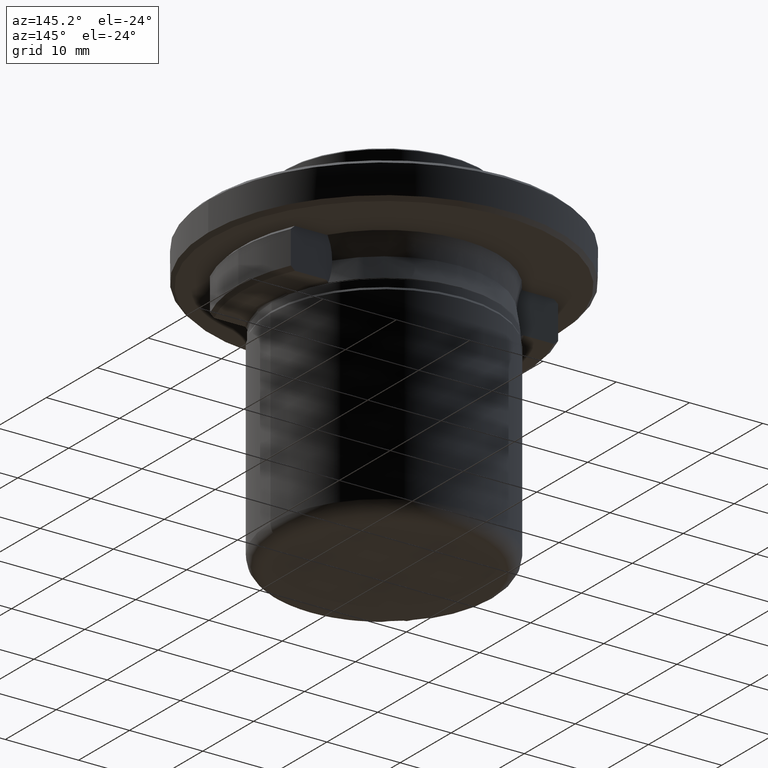
[diagram: clean part render]
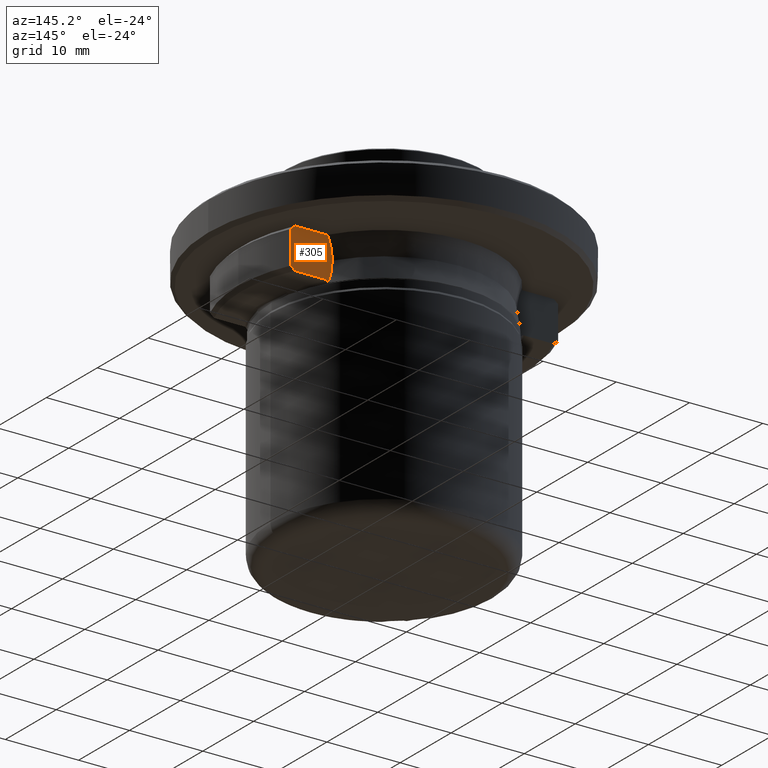
[diagram: same view with one face highlighted and labeled with its STEP entity id]
A machine part, auxiliary view. The second image highlights one B-rep face of the part: STEP entity #305.
In plain terms, the highlighted planar face has unit normal (0, -1, 0).
Its self-contained STEP definition (entity closure, byte-faithful):
#28 = VERTEX_POINT ( 'NONE', #1628 ) ;
#38 = EDGE_CURVE ( 'NONE', #1075, #1834, #1393, .T. ) ;
#43 = EDGE_CURVE ( 'NONE', #953, #1083, #1112, .T. ) ;
#54 = CARTESIAN_POINT ( 'NONE',  ( 12.83224210303494800, 7.949999999999996600, 2.552328995055731700 ) ) ;
#113 = CARTESIAN_POINT ( 'NONE',  ( 17.87618984051660600, 7.950000000000000200, 7.274354500904749400 ) ) ;
#131 = CARTESIAN_POINT ( 'NONE',  ( 12.66535530415996500, 7.949999999999998400, 5.609358371980545300 ) ) ;
#138 = CARTESIAN_POINT ( 'NONE',  ( 18.24301236100000200, 7.950000000000000200, 4.703711879000000100 ) ) ;
#143 = CARTESIAN_POINT ( 'NONE',  ( 12.60188477964878700, 7.950000000000000200, 4.478485616234513200 ) ) ;
#153 = CARTESIAN_POINT ( 'NONE',  ( 16.49816151650000200, 7.950000000000000200, 1.938485614999999800 ) ) ;
#196 = DIRECTION ( 'NONE',  ( -0.0000000000000000000, -0.0000000000000000000, 1.000000000000000000 ) ) ;
#251 = ORIENTED_EDGE ( 'NONE', *, *, #1507, .F. ) ;
#263 = VERTEX_POINT ( 'NONE', #1403 ) ;
#279 = CARTESIAN_POINT ( 'NONE',  ( 12.51205446400000000, 7.950000000000000200, 7.810683759999999900 ) ) ;
#305 = ADVANCED_FACE ( 'NONE', ( #1130 ), #1637, .F. ) ;
#345 = ORIENTED_EDGE ( 'NONE', *, *, #1278, .F. ) ;
#356 = CARTESIAN_POINT ( 'NONE',  ( 12.64875544743653700, 7.949999999999998400, 3.506562385760303400 ) ) ;
#378 = EDGE_CURVE ( 'NONE', #28, #1075, #1850, .T. ) ;
#424 = CARTESIAN_POINT ( 'NONE',  ( 17.69625666006662000, 7.950000010476004200, 7.438485615000001200 ) ) ;
#453 = CARTESIAN_POINT ( 'NONE',  ( 13.23730658963113000, 7.950000000000002000, 1.807351382817998600 ) ) ;
#514 = CARTESIAN_POINT ( 'NONE',  ( 12.60188477983408400, 7.949999999999996600, 5.048052196224376500 ) ) ;
#537 = CARTESIAN_POINT ( 'NONE',  ( 17.69625666672918000, 7.950000000031228500, 1.938485615393130200 ) ) ;
#572 = ORIENTED_EDGE ( 'NONE', *, *, #38, .F. ) ;
#594 = EDGE_LOOP ( 'NONE', ( #1550, #1479, #1940, #1441, #1407, #251, #572, #1098, #345 ) ) ;
#595 = VECTOR ( 'NONE', #1041, 1000.000000000000000 ) ;
#657 = CARTESIAN_POINT ( 'NONE',  ( 12.96762867587357900, 7.950000000000000200, 2.087259395151127400 ) ) ;
#676 = B_SPLINE_CURVE_WITH_KNOTS ( 'NONE', 3,
 ( #424, #113, #710, #1516 ),
 .UNSPECIFIED., .F., .F.,
 ( 4, 4 ),
 ( 0.0000000000000000000, 1.000000000000000000 ),
 .UNSPECIFIED. ) ;
#688 = CARTESIAN_POINT ( 'NONE',  ( 13.14428442778773500, 7.950000000000002000, 1.633581561434682500 ) ) ;
#700 = CARTESIAN_POINT ( 'NONE',  ( 18.05857921365318900, 7.950000000567687400, 2.269409425025217300 ) ) ;
#710 = CARTESIAN_POINT ( 'NONE',  ( 18.05844173941676400, 7.950000000000000200, 7.107687834238081600 ) ) ;
#753 = DIRECTION ( 'NONE',  ( -1.000000000000000000, -0.0000000000000000000, -0.0000000000000000000 ) ) ;
#806 = DIRECTION ( 'NONE',  ( -1.000000000000000000, 0.0000000000000000000, 0.0000000000000000000 ) ) ;
#840 = CARTESIAN_POINT ( 'NONE',  ( 13.14428442778773500, 7.950000000000002000, 1.633581561434682500 ) ) ;
#953 = VERTEX_POINT ( 'NONE', #840 ) ;
#956 = LINE ( 'NONE', #138, #595 ) ;
#957 = VECTOR ( 'NONE', #806, 1000.000000000000000 ) ;
#1017 = DIRECTION ( 'NONE',  ( 0.0000000000000000000, 0.0000000000000000000, -1.000000000000000000 ) ) ;
#1029 = VECTOR ( 'NONE', #196, 1000.000000000000000 ) ;
#1038 = CARTESIAN_POINT ( 'NONE',  ( 13.40164150067312900, 7.950000000000000200, 1.912062618759738700 ) ) ;
#1041 = DIRECTION ( 'NONE',  ( -0.0000000000000000000, -0.0000000000000000000, 1.000000000000000000 ) ) ;
#1075 = VERTEX_POINT ( 'NONE', #1848 ) ;
#1083 = VERTEX_POINT ( 'NONE', #1375 ) ;
#1090 = EDGE_CURVE ( 'NONE', #1163, #1083, #1701, .T. ) ;
#1098 = ORIENTED_EDGE ( 'NONE', *, *, #378, .F. ) ;
#1112 = B_SPLINE_CURVE_WITH_KNOTS ( 'NONE', 3,
 ( #688, #1352, #453, #1038, #1445, #1474 ),
 .UNSPECIFIED., .F., .F.,
 ( 4, 2, 4 ),
 ( 1.311034131324530300E-013, 0.0002906112510965650600, 0.0005812225020620267700 ),
 .UNSPECIFIED. ) ;
#1123 = CARTESIAN_POINT ( 'NONE',  ( 18.24301236095068300, 7.950000000000000200, 6.938485615387606700 ) ) ;
#1130 = FACE_OUTER_BOUND ( 'NONE', #594, .T. ) ;
#1163 = VERTEX_POINT ( 'NONE', #537 ) ;
#1192 = EDGE_CURVE ( 'NONE', #263, #1519, #676, .T. ) ;
#1198 = CARTESIAN_POINT ( 'NONE',  ( 13.21647750724465100, 7.950000000000000200, 7.515039186343749100 ) ) ;
#1278 = EDGE_CURVE ( 'NONE', #263, #28, #1767, .T. ) ;
#1301 = CARTESIAN_POINT ( 'NONE',  ( 13.11138746155885400, 7.950000000000069500, 7.251408265856600400 ) ) ;
#1328 = DIRECTION ( 'NONE',  ( 0.0000000000000000000, -1.000000000000000000, 0.0000000000000000000 ) ) ;
#1352 = CARTESIAN_POINT ( 'NONE',  ( 13.17135684886230300, 7.950000002651705700, 1.728226101320953900 ) ) ;
#1375 = CARTESIAN_POINT ( 'NONE',  ( 13.59632303333315700, 7.950000000000000200, 1.938485614889212700 ) ) ;
#1393 = B_SPLINE_CURVE_WITH_KNOTS ( 'NONE', 3,
 ( #1785, #1198, #1301, #1974, #1502, #131, #514, #1781 ),
 .UNSPECIFIED., .F., .F.,
 ( 4, 2, 2, 4 ),
 ( 0.0000000000000000000, 0.0008508907946089241000, 0.001701781589217848200, 0.003403563178435692500 ),
 .UNSPECIFIED. ) ;
#1403 = CARTESIAN_POINT ( 'NONE',  ( 17.69625666006662000, 7.950000010476004200, 7.438485615000001200 ) ) ;
#1407 = ORIENTED_EDGE ( 'NONE', *, *, #43, .F. ) ;
#1414 = EDGE_CURVE ( 'NONE', #1163, #1780, #1954, .T. ) ;
#1441 = ORIENTED_EDGE ( 'NONE', *, *, #1090, .T. ) ;
#1445 = CARTESIAN_POINT ( 'NONE',  ( 13.49824034964909600, 7.950000000000002000, 1.938485614833498800 ) ) ;
#1459 = CARTESIAN_POINT ( 'NONE',  ( 17.87632800203913800, 7.950000000460052600, 2.102742758244716500 ) ) ;
#1468 = CARTESIAN_POINT ( 'NONE',  ( 12.60188477964878700, 7.950000000000000200, 4.478485616234513200 ) ) ;
#1474 = CARTESIAN_POINT ( 'NONE',  ( 13.59632303333315700, 7.950000000000000200, 1.938485614889212700 ) ) ;
#1479 = ORIENTED_EDGE ( 'NONE', *, *, #1820, .F. ) ;
#1502 = CARTESIAN_POINT ( 'NONE',  ( 12.85156216846595400, 7.950000000000002000, 6.439474253310022400 ) ) ;
#1507 = EDGE_CURVE ( 'NONE', #1834, #953, #1593, .T. ) ;
#1516 = CARTESIAN_POINT ( 'NONE',  ( 18.24301236095068300, 7.950000000000000200, 6.938485615387606700 ) ) ;
#1519 = VERTEX_POINT ( 'NONE', #1123 ) ;
#1527 = AXIS2_PLACEMENT_3D ( 'NONE', #279, #1328, #1017 ) ;
#1550 = ORIENTED_EDGE ( 'NONE', *, *, #1192, .T. ) ;
#1552 = CARTESIAN_POINT ( 'NONE',  ( 13.33503374295579400, 7.950000004668578600, 7.606163905500000800 ) ) ;
#1572 = CARTESIAN_POINT ( 'NONE',  ( 13.14428442778773500, 7.950000000000002000, 1.633581561434682500 ) ) ;
#1593 = B_SPLINE_CURVE_WITH_KNOTS ( 'NONE', 3,
 ( #1468, #1877, #356, #54, #657, #1572 ),
 .UNSPECIFIED., .F., .F.,
 ( 4, 2, 4 ),
 ( 6.878377578730771400E-014, 0.001455991599215522900, 0.002911983198362262300 ),
 .UNSPECIFIED. ) ;
#1610 = CARTESIAN_POINT ( 'NONE',  ( 17.69625666672918000, 7.950000000031228500, 1.938485615393130200 ) ) ;
#1628 = CARTESIAN_POINT ( 'NONE',  ( 13.33503373810191700, 7.950000012810293400, 7.438485615000000300 ) ) ;
#1637 = PLANE ( 'NONE',  #1527 ) ;
#1701 = LINE ( 'NONE', #153, #1961 ) ;
#1767 = LINE ( 'NONE', #1860, #957 ) ;
#1769 = CARTESIAN_POINT ( 'NONE',  ( 18.24301236281149800, 7.949999995729952800, 2.438485615045177900 ) ) ;
#1780 = VERTEX_POINT ( 'NONE', #1948 ) ;
#1781 = CARTESIAN_POINT ( 'NONE',  ( 12.60188477964878700, 7.950000000000000200, 4.478485616234513200 ) ) ;
#1785 = CARTESIAN_POINT ( 'NONE',  ( 13.33503374396515400, 7.950000002334289400, 7.773842195276910300 ) ) ;
#1820 = EDGE_CURVE ( 'NONE', #1780, #1519, #956, .T. ) ;
#1834 = VERTEX_POINT ( 'NONE', #143 ) ;
#1848 = CARTESIAN_POINT ( 'NONE',  ( 13.33503374396515400, 7.950000002334289400, 7.773842195276910300 ) ) ;
#1850 = LINE ( 'NONE', #1552, #1029 ) ;
#1860 = CARTESIAN_POINT ( 'NONE',  ( 0.0000000000000000000, 7.950000020952010100, 7.438485615000000300 ) ) ;
#1877 = CARTESIAN_POINT ( 'NONE',  ( 12.60188477949831700, 7.950000000000000200, 3.991488783843923500 ) ) ;
#1940 = ORIENTED_EDGE ( 'NONE', *, *, #1414, .F. ) ;
#1948 = CARTESIAN_POINT ( 'NONE',  ( 18.24301236281149800, 7.949999995729952800, 2.438485615045177900 ) ) ;
#1954 = B_SPLINE_CURVE_WITH_KNOTS ( 'NONE', 3,
 ( #1610, #1459, #700, #1769 ),
 .UNSPECIFIED., .F., .F.,
 ( 4, 4 ),
 ( 0.0000000000000000000, 1.000000000000000000 ),
 .UNSPECIFIED. ) ;
#1961 = VECTOR ( 'NONE', #753, 1000.000000000000000 ) ;
#1974 = CARTESIAN_POINT ( 'NONE',  ( 12.92903265804288400, 7.950000000000068600, 6.714170475600472100 ) ) ;